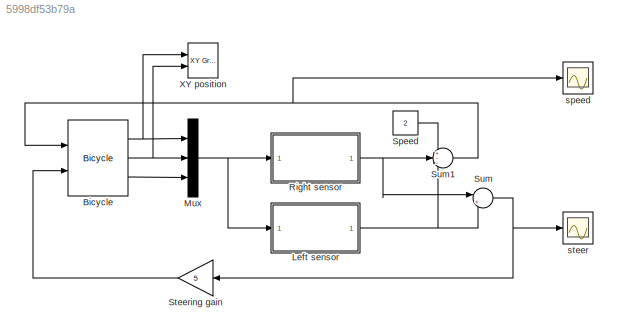
MODEL slx_5998df53b79a
KIND model
CONFIG AbsTol = auto
CONFIG FixedStep = auto
CONFIG MaxStep = auto
CONFIG MinStep = auto
CONFIG RelTol = 1e-3
CONFIG SampleTimeConstraint = Unconstrained
CONFIG Solver = ode45
CONFIG SolverMode = Auto
CONFIG SolverName = ode45
CONFIG StartTime = 0.0
CONFIG StopTime = 200
BLOCK [Reference] Bicycle  REF=roblocks/Vehicles/Bicycle  (lib defined in mdl_2a292b13c81b, mdl_69400f8cfe22, +12 more)
  L = 1
  Ports = [2, 3]
  SourceBlock = roblocks/Vehicles/Bicycle
  accel = 1
  alim = 2
  steer_rate = Inf
  vlim = 1
  x0 = [0, 0, 0]
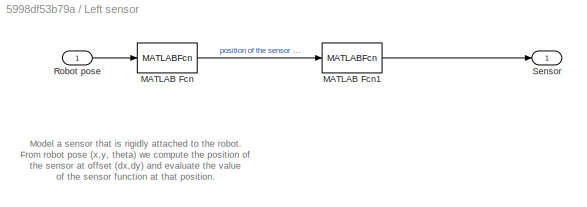
BLOCK [SubSystem] Left sensor
  Ports = [1, 1]
  RequestExecContextInheritance = off
BLOCK [MATLABFcn] Left sensor/MATLAB Fcn
  MATLABFcn = SE2(u)*[dx; dy]
  Ports = [1, 1]
BLOCK [MATLABFcn] Left sensor/MATLAB Fcn1
  MATLABFcn = sensorfunc(u(1), u(2));
  OutputDimensions = 1
  Ports = [1, 1]
BLOCK [Inport] Left sensor/Robot pose
  IconDisplay = Port number
BLOCK [Outport] Left sensor/Sensor
  IconDisplay = Port number
BLOCK [Mux] Mux
  DisplayOption = bar
  Inputs = 3
  Ports = [3, 1]
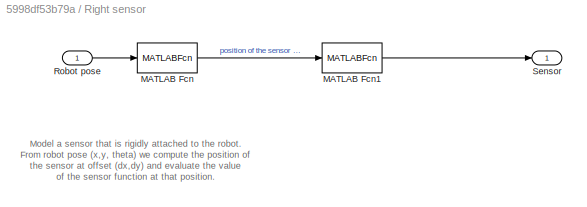
BLOCK [SubSystem] Right sensor
  Ports = [1, 1]
  RequestExecContextInheritance = off
BLOCK [MATLABFcn] Right sensor/MATLAB Fcn
  MATLABFcn = SE2(u)*[dx; dy]
  Ports = [1, 1]
BLOCK [MATLABFcn] Right sensor/MATLAB Fcn1
  MATLABFcn = sensorfunc(u(1), u(2));
  OutputDimensions = 1
  Ports = [1, 1]
BLOCK [Inport] Right sensor/Robot pose
  IconDisplay = Port number
BLOCK [Outport] Right sensor/Sensor
  IconDisplay = Port number
BLOCK [Constant] Speed
  Value = 2
BLOCK [Gain] Steering gain
  Gain = 5
  OutDataTypeStr = Inherit: Inherit via internal rule
  ParamDataTypeStr = Inherit: Inherit via internal rule
  SaturateOnIntegerOverflow = off
BLOCK [Sum] Sum
  IconShape = round
  InputSameDT = off
  Inputs = |+-
  OutDataTypeStr = Inherit: Inherit via internal rule
  Ports = [2, 1]
  SaturateOnIntegerOverflow = off
BLOCK [Sum] Sum1
  IconShape = round
  InputSameDT = off
  Inputs = +--
  OutDataTypeStr = Inherit: Inherit via internal rule
  Ports = [3, 1]
  SaturateOnIntegerOverflow = off
BLOCK [Reference] XY position  REF=simulink/Sinks/XY Graph
  Ports = [2]
  SourceBlock = simulink/Sinks/XY Graph
  SourceType = XY scope.
  st = -1
  xmax = 100
  xmin = 0
  ymax = 100
  ymin = 0
BLOCK [Scope] speed
  DataFormat = StructureWithTime
  Decimation = 1
  Floating = off
  Grid = on
  LimitDataPoints = on
  MaxDataPoints = 5000
  NumInputPorts = 1
  Ports = [1]
  SampleInput = off
  SampleTime = -1
  SaveName = ScopeData1
  SaveToWorkspace = off
  ShowLegends = off
  TickLabels = OneTimeTick
  TimeRange = auto
  YMax = 0.0675
  YMin = 0.035
  ZoomMode = on
BLOCK [Scope] steer
  DataFormat = StructureWithTime
  Decimation = 1
  Floating = off
  Grid = on
  LimitDataPoints = on
  MaxDataPoints = 5000
  NumInputPorts = 1
  Ports = [1]
  SampleInput = off
  SampleTime = -1
  SaveName = ScopeData
  SaveToWorkspace = off
  ShowLegends = off
  TickLabels = OneTimeTick
  TimeRange = auto
  YMax = 0.0675
  YMin = 0.035
  ZoomMode = on
ANNOTATION Left sensor: Model a sensor that is rigidly attached to the robot. From robot pose (x,y, theta) we compute the position of the sensor at offset (dx,dy) and evaluate the value of the sensor function at that position.
ANNOTATION Right sensor: Model a sensor that is rigidly attached to the robot. From robot pose (x,y, theta) we compute the position of the sensor at offset (dx,dy) and evaluate the value of the sensor function at that position.
NET Bicycle:1 -> Mux:1, XY position:1
NET Bicycle:2 -> Mux:2, XY position:2
LINE Bicycle:3 -> Mux:3
LINE Left sensor/MATLAB Fcn1:1 -> Left sensor/Sensor:1
LINE Left sensor/MATLAB Fcn:1 -> Left sensor/MATLAB Fcn1:1
LINE Left sensor/Robot pose:1 -> Left sensor/MATLAB Fcn:1
NET Left sensor:1 -> Sum1:3, Sum:2
NET Mux:1 -> Left sensor:1, Right sensor:1
LINE Right sensor/MATLAB Fcn1:1 -> Right sensor/Sensor:1
LINE Right sensor/MATLAB Fcn:1 -> Right sensor/MATLAB Fcn1:1
LINE Right sensor/Robot pose:1 -> Right sensor/MATLAB Fcn:1
NET Right sensor:1 -> Sum1:2, Sum:1
LINE Speed:1 -> Sum1:1
LINE Steering gain:1 -> Bicycle:2
NET Sum1:1 -> Bicycle:1, speed:1
NET Sum:1 -> Steering gain:1, steer:1
note: NET lines group one-source signal fan-out (src -> all destinations, sorted); 1:1 wires keep LINE
